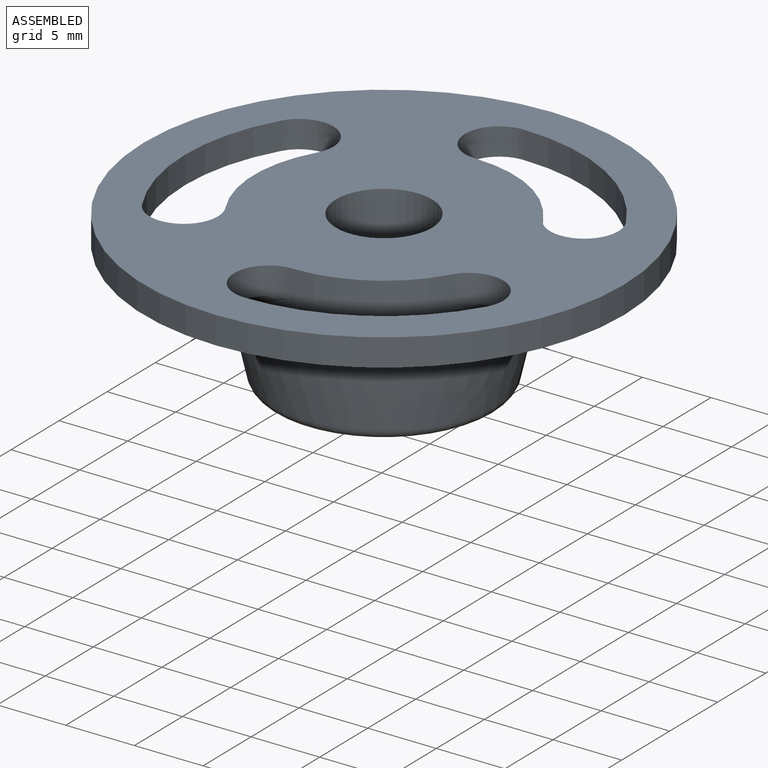
[diagram: assembled view]
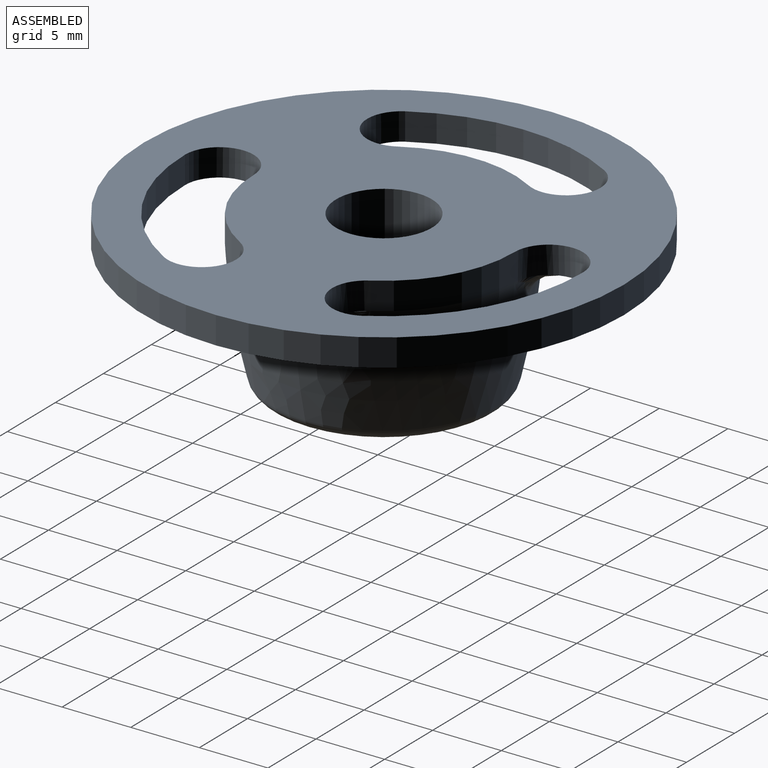
[diagram: assembled view, second angle]
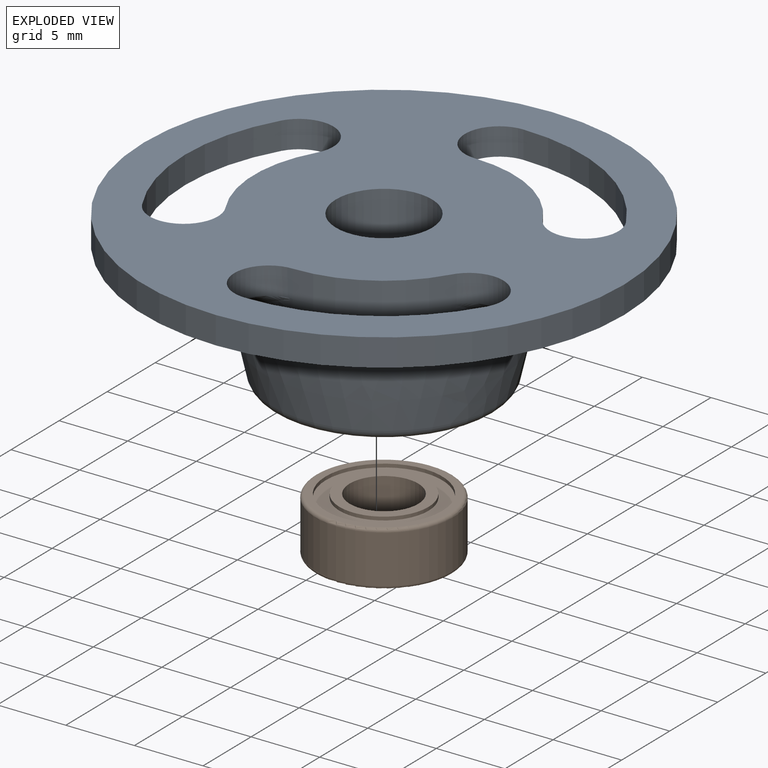
[diagram: exploded view]
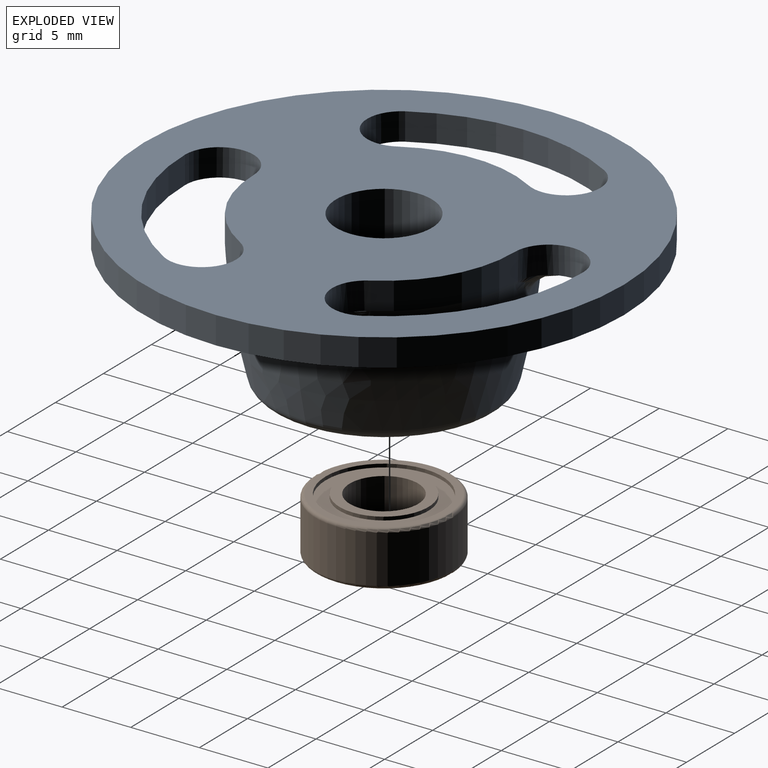
[diagram: exploded view, second angle]
ASSEMBLY  parts=2 mates=2
PART A: 30 faces, bbox 35x35x11.3 mm
  f0: cylinder r=3.5mm len=7.25mm, axis (0,0,1), area 159.4mm2, adj f1,f28
  f1: plane 35x35mm, normal (0,0,1), area 676.2mm2, adj f0,f3,f4,f5,f6,f7,f8,f9
  f2: plane 35x35mm, normal (0,0,-1), area 389.1mm2, adj f3,f4,f6,f7,f9,f10,f11,f12
  f3: cylinder r=17.5mm len=35mm, axis (0,0,-1), area 219.9mm2, adj f1,f2
  f4: cylinder r=2.5mm len=5mm, axis (0,0,-1), area 15.7mm2, adj f1,f2,f5,f7,f21
  f5: cylinder r=9.5mm len=8.23mm, axis (0,0,-1), area 19.9mm2, adj f1,f4,f6,f16
  f6: cylinder r=2.5mm len=4.67mm, axis (0,0,-1), area 15.7mm2, adj f1,f2,f5,f7,f26
  f7: cylinder r=14.5mm len=12.56mm, axis (0,0,-1), area 30.4mm2, adj f1,f2,f4,f6
  f8: cylinder r=9.5mm len=9.5mm, axis (0,0,-1), area 19.9mm2, adj f1,f9,f11,f16
  f9: cylinder r=2.5mm len=4.67mm, axis (0,0,-1), area 15.7mm2, adj f1,f2,f8,f10,f23
  f10: cylinder r=14.5mm len=14.5mm, axis (0,0,-1), area 30.4mm2, adj f1,f2,f9,f11
  f11: cylinder r=2.5mm len=4.67mm, axis (0,0,-1), area 15.7mm2, adj f1,f2,f8,f10,f18
  f12: cylinder r=2.5mm len=5mm, axis (0,0,-1), area 15.7mm2, adj f1,f2,f13,f15,f20
  f13: cylinder r=14.5mm len=12.56mm, axis (0,0,-1), area 30.4mm2, adj f1,f2,f12,f14
  f14: cylinder r=2.5mm len=4.67mm, axis (0,0,-1), area 15.7mm2, adj f1,f2,f13,f15,f24
  f15: cylinder r=9.5mm len=8.23mm, axis (0,0,-1), area 19.9mm2, adj f1,f12,f14,f16
  f16: revolved ~19x19mm, area 438.4mm2, adj f5,f8,f15,f18,f19,f20,f21,f22
  f17: plane 14.46x14.46mm, normal (0,0,-1), area 85.6mm2, adj f27,f29
  f18: bspline ~2.86x1.85mm, area 3.1mm2, adj f11,f16,f19
  f19: torus R=11.35mm, axis (0,0,1), area 18.9mm2, adj f2,f16,f18,f20
  f20: bspline ~2.35x2.05mm, area 3.1mm2, adj f12,f16,f19
  f21: bspline ~2.35x2.05mm, area 3.1mm2, adj f4,f16,f22
  f22: torus R=11.35mm, axis (0,0,1), area 18.9mm2, adj f2,f16,f21,f23
  f23: bspline ~2.86x1.85mm, area 3.1mm2, adj f9,f16,f22
  f24: bspline ~2.61x2.12mm, area 3.1mm2, adj f14,f16,f25
  f25: torus R=11.35mm, axis (0,0,1), area 18.9mm2, adj f2,f16,f24,f26
  f26: bspline ~2.61x2.12mm, area 3.1mm2, adj f6,f16,f25
  f27: torus R=7.23mm, axis (0,0,1), area 64.8mm2, adj f16,f17
  f28: plane 10x10mm, normal (0,0,-1), area 40.1mm2, adj f0,f29
  f29: cylinder r=5mm len=10mm, axis (0,0,-1), area 125.7mm2, adj f17,f28
PART B: 14 faces, bbox 10.8x10.8x4 mm
  f0: plane 6.5x6.5mm, normal (0,0,-1), area 13.5mm2, adj f2,f9
  f1: plane 6.5x6.5mm, normal (0,0,1), area 13.5mm2, adj f2,f6
  f2: cylinder r=2.5mm len=5mm, axis (0,0,-1), area 62.8mm2, adj f0,f1
  f3: cylinder r=5mm len=10mm, axis (0,0,-1), area 110mm2, adj f12,f13
  f4: plane 9.5x9.5mm, normal (0,0,1), area 14.1mm2, adj f7,f13
  f5: plane 9.5x9.5mm, normal (0,0,-1), area 14.1mm2, adj f10,f12
  f6: cylinder r=3.25mm len=6.5mm, axis (0,0,1), area 5.1mm2, adj f1,f8
  f7: cylinder r=4.25mm len=8.5mm, axis (0,0,1), area 6.7mm2, adj f4,f8
  f8: plane 8.5x8.5mm, normal (0,0,1), area 23.6mm2, adj f6,f7
  f9: cylinder r=3.25mm len=6.5mm, axis (0,0,-1), area 5.1mm2, adj f0,f11
  f10: cylinder r=4.25mm len=8.5mm, axis (0,0,-1), area 6.7mm2, adj f5,f11
  f11: plane 8.5x8.5mm, normal (0,0,-1), area 23.6mm2, adj f9,f10
  f12: torus R=4.75mm, axis (0,0,1), area 12.1mm2, adj f3,f5
  f13: torus R=4.75mm, axis (0,0,1), area 12.1mm2, adj f3,f4
PLACE A t=(2.66,4.31,13.07)mm
PLACE B rot(axis=(1,0,0),180deg) t=(2.66,4.31,7.82)mm
MATE planar B.f10 <-> A.f29  axis (0,0,1) through (2.66,4.31,7.82)mm
MATE cylindrical B.f3 <-> A.f29  axis (0,0,1) through (2.66,4.31,7.57)mm
